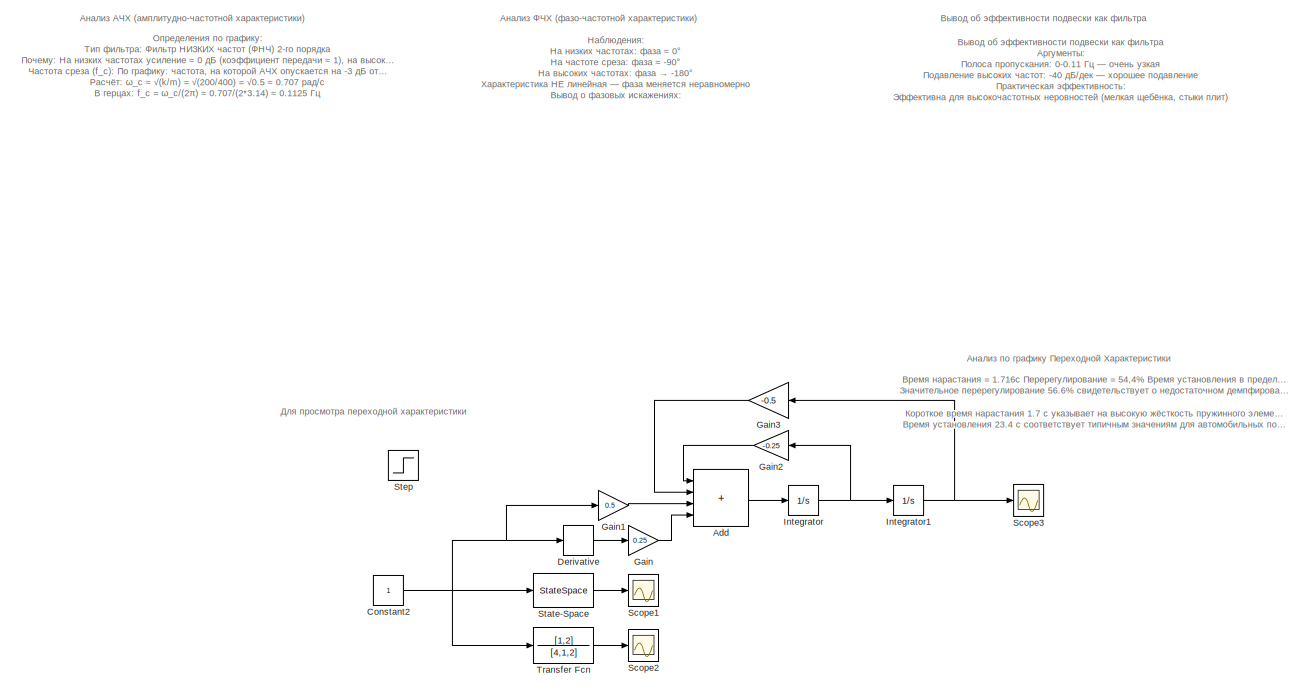
[diagram: root canvas - part 1/2, full width, top band]
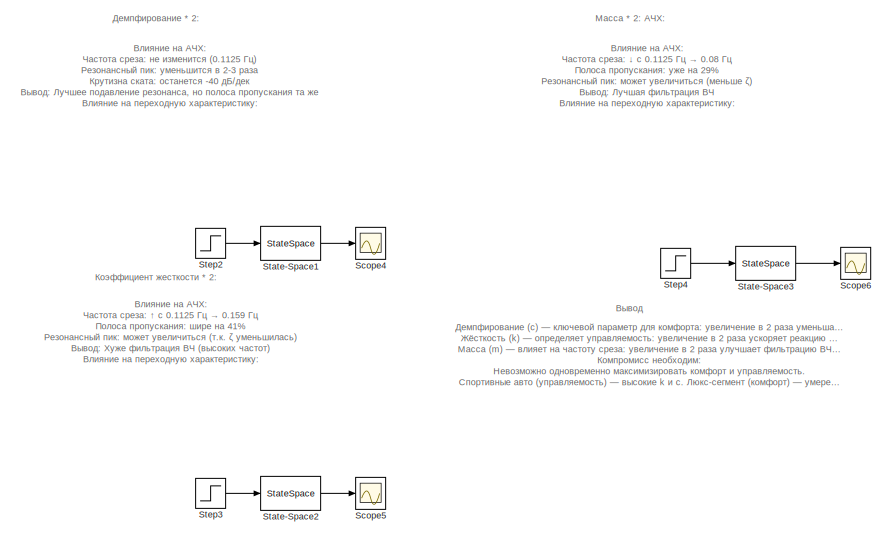
[diagram: root canvas - part 2/2, bottom center region]
MODEL slx_f7cfe88b450b
KIND model
CONFIG AbsTol = auto
CONFIG EnableMultiTasking = off
CONFIG FixedStep = auto
CONFIG MaxStep = auto
CONFIG MinStep = auto
CONFIG RelTol = 1e-3
CONFIG SampleTimeConstraint = Unconstrained
CONFIG SolverName = VariableStepAuto
CONFIG StartTime = 0.0
CONFIG StopTime = 50
BLOCK [Sum] Add
  IconShape = rectangular
  Inputs = ++++
BLOCK [Constant] Constant2
BLOCK [Derivative] Derivative
BLOCK [Gain] Gain
  Gain = 0.25
BLOCK [Gain] Gain1
  Gain = 0.5
BLOCK [Gain] Gain2
  Gain = -0.25
BLOCK [Gain] Gain3
  Gain = -0.5
BLOCK [Integrator] Integrator
BLOCK [Integrator] Integrator1
BLOCK [Scope] Scope1
  Floating = off
  NumInputPorts = 1
  ScopeSpecificationString = Simulink.scopes.TimeScopeBlockCfg('CurrentConfiguration', extmgr.ConfigurationSet(extmgr.Configuration('Core','General UI',true),extmgr.Configuration('Core','Source UI',true),extmgr.Configuration('Sources','WiredSimulink',true,'DataLoggingVariableName','ScopeData1'),extmgr.Configuration('Visuals','Time Domain',true,'SerializedDisplays',{struct('MinYLimReal','-0.19926','MaxYLimReal','1.7933','YLabe...<+1455ch>
BLOCK [Scope] Scope2
  Floating = off
  NumInputPorts = 1
  ScopeSpecificationString = Simulink.scopes.TimeScopeBlockCfg('CurrentConfiguration', extmgr.ConfigurationSet(extmgr.Configuration('Core','General UI',true),extmgr.Configuration('Core','Source UI',true),extmgr.Configuration('Sources','WiredSimulink',true,'DataLoggingVariableName','ScopeData2'),extmgr.Configuration('Visuals','Time Domain',true,'SerializedDisplays',{struct('MinYLimReal','-0.19926','MaxYLimReal','1.7933','YLabe...<+1456ch>
BLOCK [Scope] Scope3
  Floating = off
  NumInputPorts = 1
  ScopeSpecificationString = Simulink.scopes.TimeScopeBlockCfg('CurrentConfiguration', extmgr.ConfigurationSet(extmgr.Configuration('Core','General UI',true),extmgr.Configuration('Core','Source UI',true),extmgr.Configuration('Sources','WiredSimulink',true,'DataLoggingVariableName','ScopeData3'),extmgr.Configuration('Visuals','Time Domain',true,'SerializedDisplays',{struct('MinYLimReal','-0.193','MaxYLimReal','1.73704','YLabel...<+1501ch>
BLOCK [Scope] Scope4
  Floating = off
  NumInputPorts = 1
  ScopeSpecificationString = Simulink.scopes.TimeScopeBlockCfg('CurrentConfiguration', extmgr.ConfigurationSet(extmgr.Configuration('Core','General UI',true),extmgr.Configuration('Core','Source UI',true),extmgr.Configuration('Sources','WiredSimulink',true),extmgr.Configuration('Visuals','Time Domain',true,'SerializedDisplays',{struct('MinYLimReal','-0.23246','MaxYLimReal','2.09213','YLabelReal','','MinYLimMag','0.00000','MaxY...<+1421ch>
BLOCK [Scope] Scope5
  Floating = off
  NumInputPorts = 1
  ScopeSpecificationString = Simulink.scopes.TimeScopeBlockCfg('CurrentConfiguration', extmgr.ConfigurationSet(extmgr.Configuration('Core','General UI',true),extmgr.Configuration('Core','Source UI',true),extmgr.Configuration('Sources','WiredSimulink',true,'DataLoggingVariableName','ScopeData4'),extmgr.Configuration('Visuals','Time Domain',true,'SerializedDisplays',{struct('MinYLimReal','-0.20589','MaxYLimReal','1.85299','YLab...<+1460ch>
BLOCK [Scope] Scope6
  Floating = off
  NumInputPorts = 1
  ScopeSpecificationString = Simulink.scopes.TimeScopeBlockCfg('CurrentConfiguration', extmgr.ConfigurationSet(extmgr.Configuration('Core','General UI',true),extmgr.Configuration('Core','Source UI',true),extmgr.Configuration('Sources','WiredSimulink',true,'DataLoggingVariableName','ScopeData5'),extmgr.Configuration('Visuals','Time Domain',true,'SerializedDisplays',{struct('MinYLimReal','-0.20018','MaxYLimReal','1.80166','YLab...<+1460ch>
BLOCK [StateSpace] State-Space
  A = [0 1; -0.5 -0.25]
  B = [0.25; 0.4375]
  C = [1, 0]
  D = 0
  InitialCondition = 0
BLOCK [StateSpace] State-Space1
  A = [0 1; -0.5 -0.5]
  B = [0.5; 0.4375]
  C = [1, 0]
  D = 0
  InitialCondition = 0
BLOCK [StateSpace] State-Space2
  A = [0 1; -1 -0.25]
  B = [0.25; 0.9375]
  C = [1, 0]
  D = 0
  InitialCondition = 0
BLOCK [StateSpace] State-Space3
  A = [0 1; -0.25 -0.125]
  B = [0.125; 0.234375]
  C = [1, 0]
  D = 0
  InitialCondition = 0
BLOCK [Step] Step
  SampleTime = 0
BLOCK [Step] Step2
  SampleTime = 0
BLOCK [Step] Step3
  SampleTime = 0
BLOCK [Step] Step4
  SampleTime = 0
BLOCK [TransferFcn] Transfer Fcn
  Denominator = [4,1,2]
  Numerator = [1,2]
ANNOTATION (root): Для просмотра переходной характеристики
ANNOTATION (root): Влияние на АЧХ: Частота среза: не изменится (0.1125 Гц) Резонансный пик: уменьшится в 2-3 раза Крутизна ската: останется -40 дБ/дек Вывод: Лучшее подавление резонанса, но полоса пропускания та же Влияние на переходную характеристику: Перерегулирование σ%: с 56.6% → ~15-20% Время нарастания t_r: с 1.7 с → ~2.5-3.0 с Время установления t_s: с 23.4 с → ~12-15 с Вывод: Меньше "качки", быстрее успокаив...<+5ch>
ANNOTATION (root): Влияние на АЧХ: Частота среза: ↑ с 0.1125 Гц → 0.159 Гц Полоса пропускания: шире на 41% Резонансный пик: может увеличиться (т.к. ζ уменьшилась) Вывод: Хуже фильтрация ВЧ (высоких частот) Влияние на переходную характеристику: Перерегулирование σ%: с 56.6% → ~60-65% (увеличится) Время нарастания t_r: с 1.7 с → ~1.2-1.5 с (быстрее) Частота колебаний: ↑ с 0.112 Гц → 0.159 Гц Вывод: Более "резкая" подв...<+21ch>
ANNOTATION (root): Влияние на АЧХ: Частота среза: ↓ с 0.1125 Гц → 0.08 Гц Полоса пропускания: уже на 29% Резонансный пик: может увеличиться (меньше ζ) Вывод: Лучшая фильтрация ВЧ Влияние на переходную характеристику: Перерегулирование σ%: с 56.6% → ~60-65% (увеличится) Время нарастания t_r: с 1.7 с → ~2.5-3.0 с (медленнее) Частота колебаний: ↓ с 0.112 Гц → 0.08 Гц Время установления t_s: с 23.4 с → ~30-35 с (дольше)...<+38ch>
ANNOTATION (root): Вывод об эффективности подвески как фильтра Аргументы: Полоса пропускания: 0-0.11 Гц — очень узкая Подавление высоких частот: -40 дБ/дек — хорошее подавление Практическая эффективность: Эффективна для высокочастотных неровностей (мелкая щебёнка, стыки плит) Неэффективна для низкочастотных неровностей (плавные подъёмы, лежачие полицейские) Проблема: Фазовые искажения могут ухудшить комфорт Итоговый...<+127ch>
ANNOTATION (root): Демпфирование (c) — ключевой параметр для комфорта: увеличение в 2 раза уменьшает перерегулирование в 3 раза и время установления в 1.7 раза Жёсткость (k) — определяет управляемость: увеличение в 2 раза ускоряет реакцию в 1.3 раза, но ухудшает фильтрацию ВЧ на 41%. Масса (m) — влияет на частоту среза: увеличение в 2 раза улучшает фильтрацию ВЧ на 29%, но замедляет реакцию системы. Компромисс необх...<+382ch>
ANNOTATION (root): Наблюдения: На низких частотах: фаза ≈ 0° На частоте среза: фаза ≈ -90° На высоких частотах: фаза → -180° Характеристика НЕ линейная — фаза меняется неравномерно Вывод о фазовых искажениях: Система вносит значительные фазовые искажения, особенно в районе частоты среза Для сложных сигналов (содержащих много частот) это приведёт к искажению формы сигнала
ANNOTATION (root): Время нарастания = 1.716c Перерегулирование = 54,4% Время установления в пределах 5% полосы = 24.3c Значительное перерегулирование 56.6% свидетельствует о недостаточном демпфировании в системе. При наезде на неровность кузов автомобиля подбрасывается на 56.6% выше положения равновесия, что приводит к сильной раскачке и снижению комфорта пассажиров Короткое время нарастания 1.7 с указывает на высок...<+435ch>
ANNOTATION (root): Определения по графику: Тип фильтра: Фильтр НИЗКИХ частот (ФНЧ) 2-го порядка Почему: На низких частотах усиление ≈ 0 дБ (коэффициент передачи ≈ 1), на высоких частотах усиление падает. Частота среза (f_c): По графику: частота, на которой АЧХ опускается на -3 дБ от уровня низких частот Расчёт: ω_c ≈ √(k/m) = √(200/400) = √0.5 ≈ 0.707 рад/с В герцах: f_c = ω_c/(2π) ≈ 0.707/(2*3.14) ≈ 0.1125 Гц Крути...<+180ch>
ANNOTATION (root): Анализ АЧХ (амплитудно-частотной характеристики)
ANNOTATION (root): Анализ ФЧХ (фазо-частотной характеристики)
ANNOTATION (root): Анализ по графику Переходной Характеристики
ANNOTATION (root): Вывод
ANNOTATION (root): Вывод об эффективности подвески как фильтра
ANNOTATION (root): Демпфирование * 2:
ANNOTATION (root): Коэффициент жесткости * 2:
ANNOTATION (root): Масса * 2: АЧХ:
LINE Add:1 -> Integrator:1
NET Constant2:1 -> Derivative:1, Gain1:1, State-Space:1, Transfer Fcn:1
LINE Derivative:1 -> Gain:1
LINE Gain1:1 -> Add:3
LINE Gain2:1 -> Add:1
LINE Gain3:1 -> Add:2
LINE Gain:1 -> Add:4
NET Integrator1:1 -> Gain3:1, Scope3:1
NET Integrator:1 -> Gain2:1, Integrator1:1
LINE State-Space1:1 -> Scope4:1
LINE State-Space2:1 -> Scope5:1
LINE State-Space3:1 -> Scope6:1
LINE State-Space:1 -> Scope1:1
LINE Step2:1 -> State-Space1:1
LINE Step3:1 -> State-Space2:1
LINE Step4:1 -> State-Space3:1
LINE Transfer Fcn:1 -> Scope2:1
note: NET lines group one-source signal fan-out (src -> all destinations, sorted); 1:1 wires keep LINE
